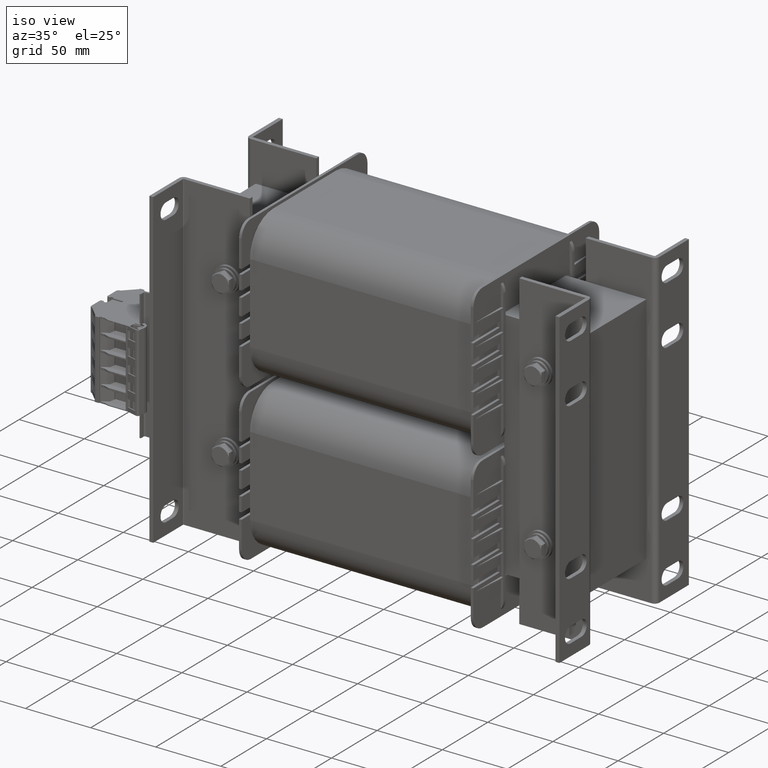
[diagram: clean part render]
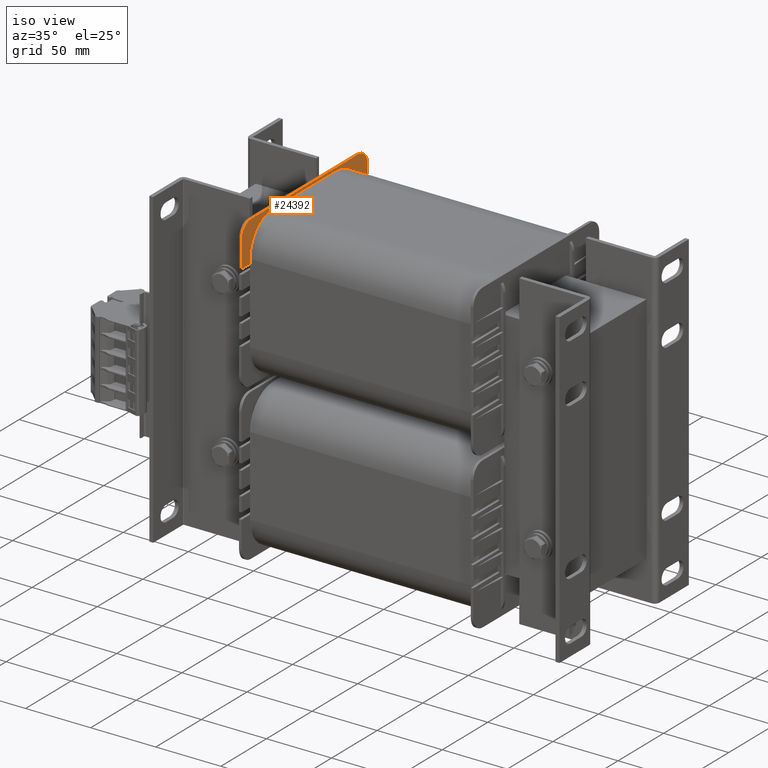
[diagram: same view with one face highlighted and labeled with its STEP entity id]
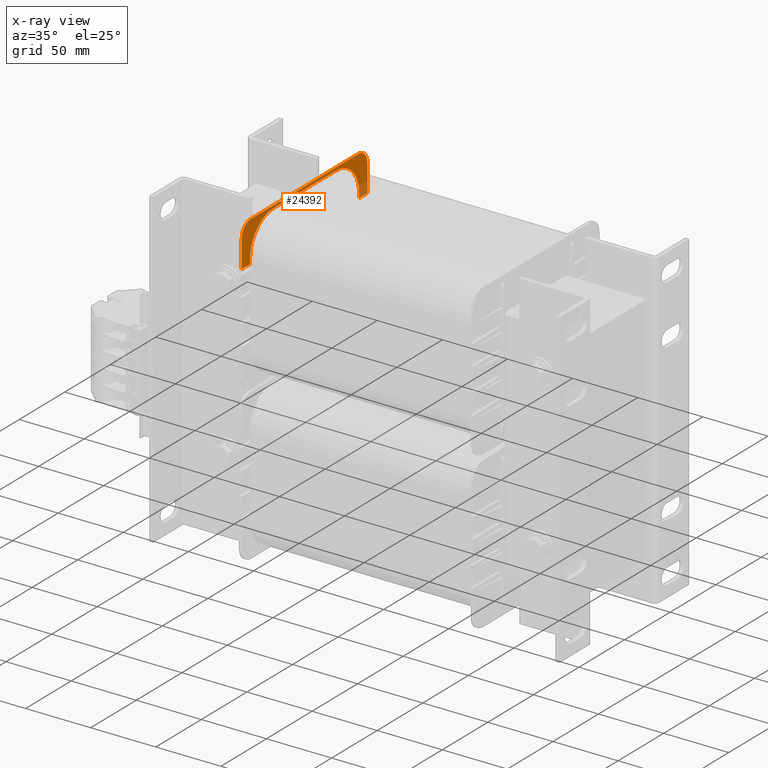
[diagram: x-ray of the same camera — body ghosted, the highlighted face saturated]
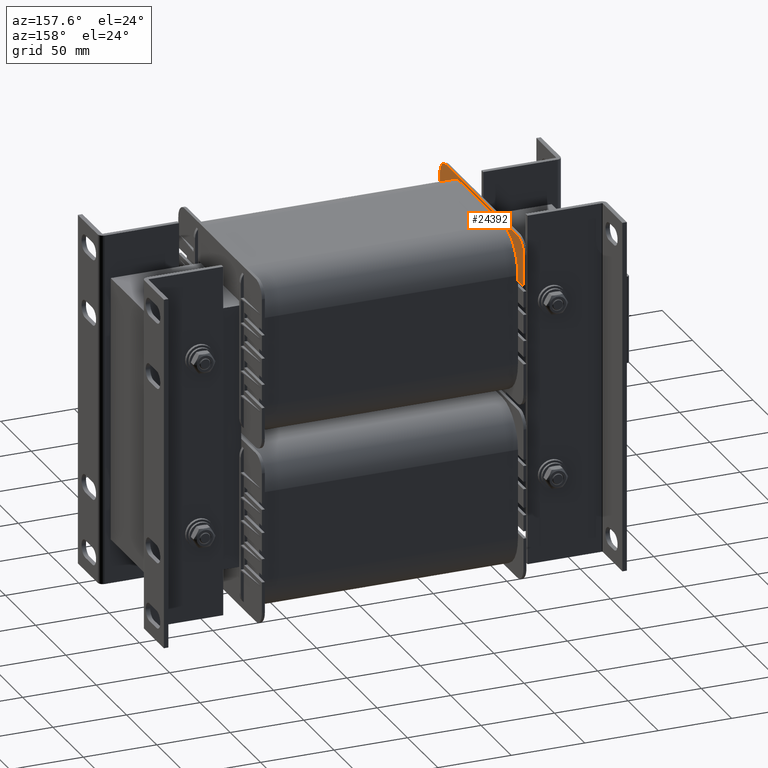
[diagram: same view with one face highlighted and labeled with its STEP entity id]
A machine part, iso view. The second image highlights one B-rep face of the part: STEP entity #24392.
The next image is the same camera in x-ray: the body ghosted, the highlighted face saturated — about 8% of this face is hidden behind the body in this view.
A second angle (auxiliary view) of the same face is appended — the face is thin or edge-on in the first view.
In plain terms, the highlighted planar face has unit normal (-1, -0, 0).
Its self-contained STEP definition (entity closure, byte-faithful):
#1181=CIRCLE('',#26126,25.3691630029813);
#1183=CIRCLE('',#26130,25.3691630029813);
#1191=CIRCLE('',#26147,10.);
#1192=CIRCLE('',#26148,10.);
#2510=FACE_OUTER_BOUND('',#3900,.T.);
#3900=EDGE_LOOP('',(#16910,#16911,#16912,#16913,#16914,#16915,#16916,#16917,
#16918,#16919,#16920,#16921));
#5383=LINE('',#36026,#7972);
#5396=LINE('',#36049,#7985);
#5407=LINE('',#36069,#7996);
#5429=LINE('',#36122,#8018);
#5430=LINE('',#36124,#8019);
#5431=LINE('',#36128,#8020);
#5432=LINE('',#36132,#8021);
#5433=LINE('',#36133,#8022);
#7972=VECTOR('',#28831,10.);
#7985=VECTOR('',#28852,10.);
#7996=VECTOR('',#28871,10.);
#8018=VECTOR('',#28921,10.);
#8019=VECTOR('',#28922,10.);
#8020=VECTOR('',#28925,10.);
#8021=VECTOR('',#28928,10.);
#8022=VECTOR('',#28929,10.);
#10510=VERTEX_POINT('',#35895);
#10512=VERTEX_POINT('',#35900);
#10567=VERTEX_POINT('',#36025);
#10571=VERTEX_POINT('',#36042);
#10573=VERTEX_POINT('',#36048);
#10575=VERTEX_POINT('',#36054);
#10595=VERTEX_POINT('',#36121);
#10596=VERTEX_POINT('',#36123);
#10597=VERTEX_POINT('',#36125);
#10598=VERTEX_POINT('',#36127);
#10599=VERTEX_POINT('',#36129);
#10600=VERTEX_POINT('',#36131);
#12964=EDGE_CURVE('',#10567,#10510,#5383,.T.);
#12976=EDGE_CURVE('',#10571,#10567,#1181,.T.);
#12979=EDGE_CURVE('',#10573,#10571,#5396,.T.);
#12982=EDGE_CURVE('',#10575,#10573,#1183,.T.);
#12992=EDGE_CURVE('',#10512,#10575,#5407,.T.);
#13020=EDGE_CURVE('',#10595,#10510,#5429,.T.);
#13021=EDGE_CURVE('',#10596,#10595,#5430,.T.);
#13022=EDGE_CURVE('',#10597,#10596,#1191,.T.);
#13023=EDGE_CURVE('',#10598,#10597,#5431,.T.);
#13024=EDGE_CURVE('',#10599,#10598,#1192,.T.);
#13025=EDGE_CURVE('',#10600,#10599,#5432,.T.);
#13026=EDGE_CURVE('',#10512,#10600,#5433,.T.);
#16910=ORIENTED_EDGE('',*,*,#12964,.T.);
#16911=ORIENTED_EDGE('',*,*,#13020,.F.);
#16912=ORIENTED_EDGE('',*,*,#13021,.F.);
#16913=ORIENTED_EDGE('',*,*,#13022,.F.);
#16914=ORIENTED_EDGE('',*,*,#13023,.F.);
#16915=ORIENTED_EDGE('',*,*,#13024,.F.);
#16916=ORIENTED_EDGE('',*,*,#13025,.F.);
#16917=ORIENTED_EDGE('',*,*,#13026,.F.);
#16918=ORIENTED_EDGE('',*,*,#12992,.T.);
#16919=ORIENTED_EDGE('',*,*,#12982,.T.);
#16920=ORIENTED_EDGE('',*,*,#12979,.T.);
#16921=ORIENTED_EDGE('',*,*,#12976,.T.);
#23506=PLANE('',#26146);
#24392=ADVANCED_FACE('',(#2510),#23506,.F.);
#26126=AXIS2_PLACEMENT_3D('',#36043,#28845,#28846);
#26130=AXIS2_PLACEMENT_3D('',#36055,#28857,#28858);
#26146=AXIS2_PLACEMENT_3D('',#36120,#28919,#28920);
#26147=AXIS2_PLACEMENT_3D('',#36126,#28923,#28924);
#26148=AXIS2_PLACEMENT_3D('',#36130,#28926,#28927);
#28831=DIRECTION('',(1.45603019622832E-16,0.,1.));
#28845=DIRECTION('center_axis',(0.,1.,0.));
#28846=DIRECTION('ref_axis',(1.14710784577539E-12,0.,-1.));
#28852=DIRECTION('',(-1.,0.,1.28721510101576E-16));
#28857=DIRECTION('center_axis',(0.,1.,0.));
#28858=DIRECTION('ref_axis',(1.,0.,-1.31568175932364E-12));
#28871=DIRECTION('',(-1.45603019622832E-16,0.,-1.));
#28919=DIRECTION('center_axis',(0.,1.,0.));
#28920=DIRECTION('ref_axis',(0.,0.,1.));
#28921=DIRECTION('',(1.,0.,0.));
#28922=DIRECTION('',(2.86509167645202E-16,0.,1.));
#28923=DIRECTION('center_axis',(0.,1.,0.));
#28924=DIRECTION('ref_axis',(-0.707106781186547,0.,-0.707106781186547));
#28925=DIRECTION('',(-1.,0.,1.20024110770287E-16));
#28926=DIRECTION('center_axis',(0.,1.,0.));
#28927=DIRECTION('ref_axis',(0.707106781186547,0.,-0.707106781186548));
#28928=DIRECTION('',(-5.73018335290403E-16,0.,-1.));
#28929=DIRECTION('',(1.,0.,-4.59402630879374E-16));
#35895=CARTESIAN_POINT('',(-64.8691630029813,178.,-27.));
#35900=CARTESIAN_POINT('',(54.8691630029813,178.,-27.));
#36025=CARTESIAN_POINT('',(-64.8691630029813,178.,-30.5000000000334));
#36026=CARTESIAN_POINT('',(-64.8691630029813,178.,-15.2500000000167));
#36042=CARTESIAN_POINT('',(-39.4999999999709,178.,-55.8691630029814));
#36043=CARTESIAN_POINT('Origin',(-39.5,178.,-30.5));
#36048=CARTESIAN_POINT('',(29.4999999999709,178.,-55.8691630029814));
#36049=CARTESIAN_POINT('',(12.2499999999855,178.,-55.8691630029814));
#36054=CARTESIAN_POINT('',(54.8691630029813,178.,-30.5000000000334));
#36055=CARTESIAN_POINT('Origin',(29.5,178.,-30.5));
#36069=CARTESIAN_POINT('',(54.8691630029814,178.,15.2500000000124));
#36120=CARTESIAN_POINT('Origin',(-4.99999999999999,178.,-8.88178419700125E-15));
#36121=CARTESIAN_POINT('',(-74.,178.,-27.));
#36122=CARTESIAN_POINT('',(-74.,178.,-27.));
#36123=CARTESIAN_POINT('',(-74.,178.,-48.));
#36124=CARTESIAN_POINT('',(-74.,178.,-58.));
#36125=CARTESIAN_POINT('',(-64.,178.,-58.));
#36126=CARTESIAN_POINT('Origin',(-64.,178.,-48.));
#36127=CARTESIAN_POINT('',(54.,178.,-58.));
#36128=CARTESIAN_POINT('',(64.,178.,-58.));
#36129=CARTESIAN_POINT('',(64.,178.,-48.));
#36130=CARTESIAN_POINT('Origin',(54.,178.,-48.));
#36131=CARTESIAN_POINT('',(64.,178.,-27.));
#36132=CARTESIAN_POINT('',(64.,178.,-27.));
#36133=CARTESIAN_POINT('',(35.,178.,-27.));